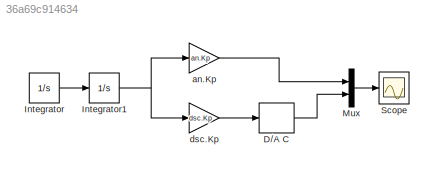
MODEL slx_36a69c914634
KIND model
CONFIG AbsTol = auto
CONFIG EnableMultiTasking = off
CONFIG FixedStep = To/100
CONFIG MaxStep = auto
CONFIG MinStep = auto
CONFIG RelTol = 1e-3
CONFIG SampleTimeConstraint = Unconstrained
CONFIG SolverName = ode3
CONFIG StartTime = 0.0
CONFIG StopTime = Tmdl
BLOCK [ZeroOrderHold] D//A C
  SampleTime = To
BLOCK [Integrator] Integrator
  InitialCondition = 1
BLOCK [Integrator] Integrator1
BLOCK [Mux] Mux
  DisplayOption = bar
  Inputs = 2
BLOCK [Scope] Scope
  Floating = off
  NumInputPorts = 1
  ScopeSpecificationString = Simulink.scopes.TimeScopeBlockCfg('CurrentConfiguration', extmgr.ConfigurationSet(extmgr.Configuration('Core','General UI',true),extmgr.Configuration('Core','Source UI',true),extmgr.Configuration('Sources','WiredSimulink',true,'DataLoggingVariableName','y','DataLogging',true,'DataLoggingSaveFormat','Array'),extmgr.Configuration('Visuals','Time Domain',true,'SerializedDisplays',{struct('MinYLimReal...<+1392ch>
BLOCK [Gain] an.Kp
  Gain = an.Kp
BLOCK [Gain] dsc.Kp
  Gain = dsc.Kp
LINE D//A C:1 -> Mux:2
NET Integrator1:1 -> an.Kp:1, dsc.Kp:1
LINE Integrator:1 -> Integrator1:1
LINE Mux:1 -> Scope:1
LINE an.Kp:1 -> Mux:1
LINE dsc.Kp:1 -> D//A C:1
note: NET lines group one-source signal fan-out (src -> all destinations, sorted); 1:1 wires keep LINE
